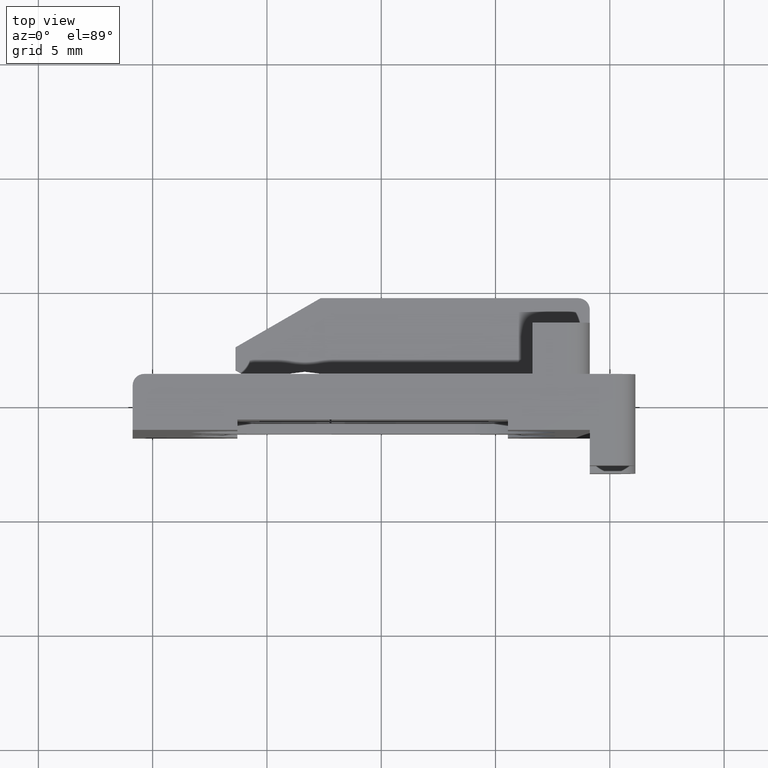
[diagram: clean part render]
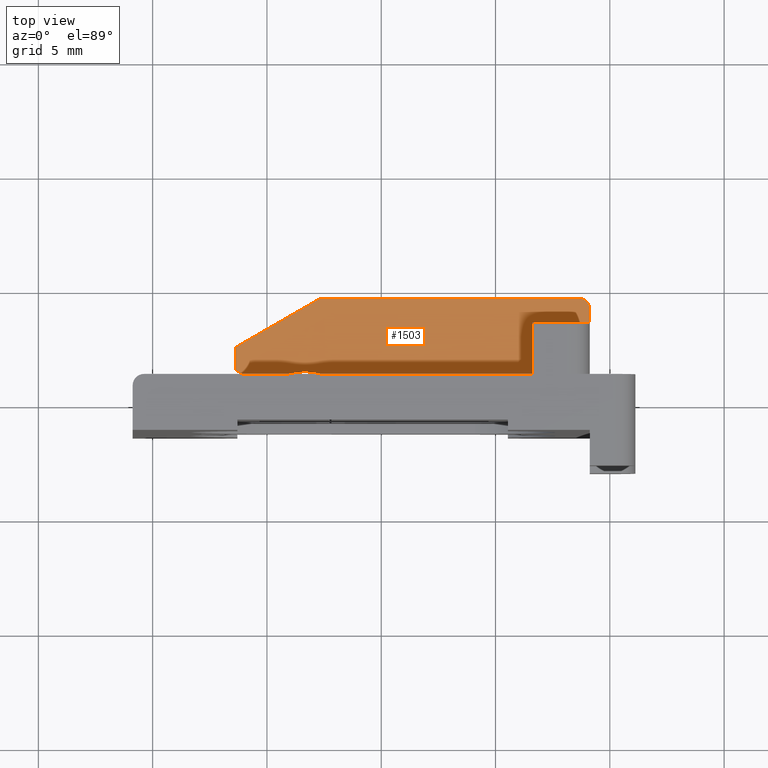
[diagram: same view with one face highlighted and labeled with its STEP entity id]
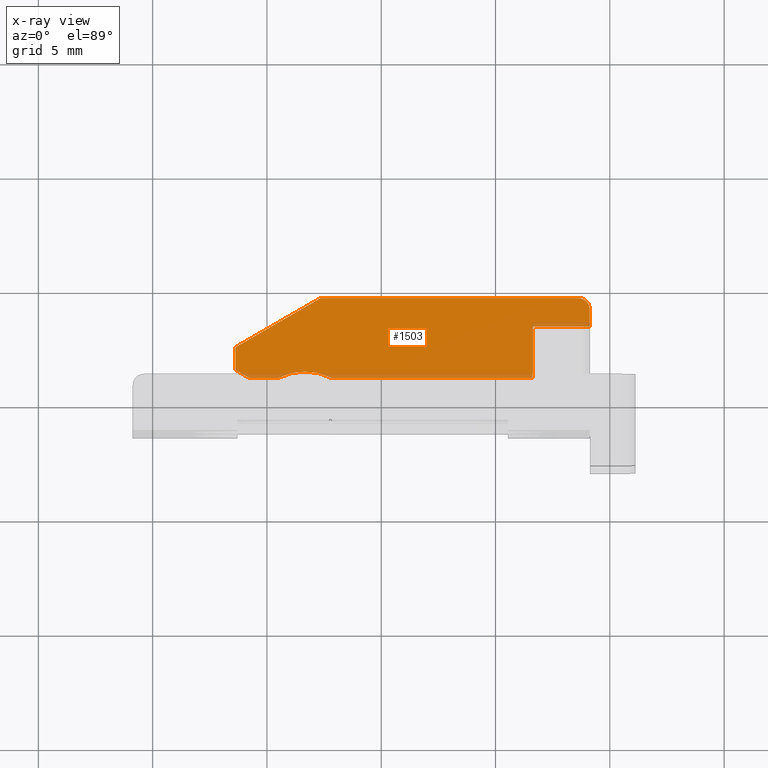
[diagram: x-ray of the same camera — body ghosted, the highlighted face saturated]
A machine part, top view. The second image highlights one B-rep face of the part: STEP entity #1503.
The next image is the same camera in x-ray: the body ghosted, the highlighted face saturated — about 6% of this face is hidden behind the body in this view.
In plain terms, the highlighted planar face has unit normal (-0, 0, 1).
Its self-contained STEP definition (entity closure, byte-faithful):
#9 = VECTOR ( 'NONE', #1916, 1000.000000000000000 ) ;
#12 = VECTOR ( 'NONE', #1964, 1000.000000000000000 ) ;
#81 = VECTOR ( 'NONE', #2057, 1000.000000000000000 ) ;
#114 = AXIS2_PLACEMENT_3D ( 'NONE', #2206, #2177, #2168 ) ;
#142 = AXIS2_PLACEMENT_3D ( 'NONE', #2256, #2277, #2292 ) ;
#144 = VECTOR ( 'NONE', #2285, 1000.000000000000000 ) ;
#150 = CIRCLE ( 'NONE', #142, 0.5000000000000004400 ) ;
#151 = VECTOR ( 'NONE', #2210, 1000.000000000000000 ) ;
#312 = VECTOR ( 'NONE', #1795, 1000.000000000000100 ) ;
#318 = VECTOR ( 'NONE', #1784, 1000.000000000000000 ) ;
#331 = VECTOR ( 'NONE', #1798, 1000.000000000000000 ) ;
#371 = CIRCLE ( 'NONE', #397, 2.500000000000002200 ) ;
#397 = AXIS2_PLACEMENT_3D ( 'NONE', #1831, #1842, #1843 ) ;
#403 = VECTOR ( 'NONE', #1833, 1000.000000000000000 ) ;
#583 = EDGE_LOOP ( 'NONE', ( #1187, #1188, #1166, #1236, #1203, #1160, #1190, #1213, #1186, #1184, #1237 ) ) ;
#669 = VERTEX_POINT ( 'NONE', #865 ) ;
#680 = VERTEX_POINT ( 'NONE', #879 ) ;
#689 = VERTEX_POINT ( 'NONE', #853 ) ;
#701 = VERTEX_POINT ( 'NONE', #878 ) ;
#706 = VERTEX_POINT ( 'NONE', #873 ) ;
#745 = VERTEX_POINT ( 'NONE', #904 ) ;
#751 = VERTEX_POINT ( 'NONE', #911 ) ;
#755 = VERTEX_POINT ( 'NONE', #923 ) ;
#759 = VERTEX_POINT ( 'NONE', #935 ) ;
#763 = VERTEX_POINT ( 'NONE', #902 ) ;
#764 = VERTEX_POINT ( 'NONE', #938 ) ;
#853 = CARTESIAN_POINT ( 'NONE',  ( 463.6252094327940700, 149.5878730676890000, 11.89999999999859900 ) ) ;
#865 = CARTESIAN_POINT ( 'NONE',  ( 448.6252094327942400, 146.4378730676890000, 11.89999999999854700 ) ) ;
#873 = CARTESIAN_POINT ( 'NONE',  ( 464.1252094327940100, 149.0878730676890000, 11.89999999999860100 ) ) ;
#878 = CARTESIAN_POINT ( 'NONE',  ( 449.2314272154433200, 146.0878730676890000, 11.89999999999854900 ) ) ;
#879 = CARTESIAN_POINT ( 'NONE',  ( 450.4891510183761100, 146.0878730676890000, 11.89999999999855400 ) ) ;
#902 = CARTESIAN_POINT ( 'NONE',  ( 464.1252094327940100, 148.3378730676890000, 11.89999999999860100 ) ) ;
#904 = CARTESIAN_POINT ( 'NONE',  ( 461.6252094327939500, 148.3378730676890000, 11.89999999999859200 ) ) ;
#911 = CARTESIAN_POINT ( 'NONE',  ( 452.3491186690670800, 149.5878730676890000, 11.89999999999856000 ) ) ;
#923 = CARTESIAN_POINT ( 'NONE',  ( 448.6252094327942900, 147.4378730676890000, 11.89999999999854700 ) ) ;
#935 = CARTESIAN_POINT ( 'NONE',  ( 461.6252094327939500, 146.0878730676890000, 11.89999999999859200 ) ) ;
#938 = CARTESIAN_POINT ( 'NONE',  ( 452.8252094327940500, 146.0878730676890000, 11.89999999999856200 ) ) ;
#1160 = ORIENTED_EDGE ( 'NONE', *, *, #1520, .T. ) ;
#1166 = ORIENTED_EDGE ( 'NONE', *, *, #1736, .T. ) ;
#1184 = ORIENTED_EDGE ( 'NONE', *, *, #1710, .T. ) ;
#1186 = ORIENTED_EDGE ( 'NONE', *, *, #1708, .T. ) ;
#1187 = ORIENTED_EDGE ( 'NONE', *, *, #1720, .T. ) ;
#1188 = ORIENTED_EDGE ( 'NONE', *, *, #1534, .T. ) ;
#1190 = ORIENTED_EDGE ( 'NONE', *, *, #1484, .T. ) ;
#1203 = ORIENTED_EDGE ( 'NONE', *, *, #1446, .T. ) ;
#1213 = ORIENTED_EDGE ( 'NONE', *, *, #1523, .F. ) ;
#1236 = ORIENTED_EDGE ( 'NONE', *, *, #1450, .F. ) ;
#1237 = ORIENTED_EDGE ( 'NONE', *, *, #1724, .T. ) ;
#1446 = EDGE_CURVE ( 'NONE', #759, #745, #1947, .T. ) ;
#1450 = EDGE_CURVE ( 'NONE', #759, #764, #1948, .T. ) ;
#1484 = EDGE_CURVE ( 'NONE', #763, #706, #2098, .T. ) ;
#1503 = ADVANCED_FACE ( 'NONE', ( #2183 ), #2159, .T. ) ;
#1520 = EDGE_CURVE ( 'NONE', #745, #763, #2240, .T. ) ;
#1523 = EDGE_CURVE ( 'NONE', #689, #706, #150, .T. ) ;
#1534 = EDGE_CURVE ( 'NONE', #701, #680, #2273, .T. ) ;
#1708 = EDGE_CURVE ( 'NONE', #689, #751, #1759, .T. ) ;
#1710 = EDGE_CURVE ( 'NONE', #751, #755, #1779, .T. ) ;
#1720 = EDGE_CURVE ( 'NONE', #669, #701, #1755, .T. ) ;
#1724 = EDGE_CURVE ( 'NONE', #755, #669, #1830, .T. ) ;
#1736 = EDGE_CURVE ( 'NONE', #680, #764, #371, .T. ) ;
#1755 = LINE ( 'NONE', #1775, #331 ) ;
#1759 = LINE ( 'NONE', #1765, #318 ) ;
#1765 = CARTESIAN_POINT ( 'NONE',  ( 451.4830932652830600, 149.5878730676890000, 11.89999999999855800 ) ) ;
#1775 = CARTESIAN_POINT ( 'NONE',  ( 448.6252094327942400, 146.4378730676890000, 11.89999999999854700 ) ) ;
#1779 = LINE ( 'NONE', #1787, #312 ) ;
#1784 = DIRECTION ( 'NONE',  ( -1.000000000000000000, -2.625714205539855700E-033, -3.492165866658340700E-015 ) ) ;
#1787 = CARTESIAN_POINT ( 'NONE',  ( 448.6252094327943500, 147.4378730676890000, 11.89999999999854700 ) ) ;
#1795 = DIRECTION ( 'NONE',  ( -0.8660254037844393700, -0.4999999999999985600, -3.024290686865891900E-015 ) ) ;
#1798 = DIRECTION ( 'NONE',  ( 0.8660254037844392600, -0.4999999999999990000, 3.024318022644160200E-015 ) ) ;
#1813 = CARTESIAN_POINT ( 'NONE',  ( 448.6252094327942400, 146.4378730676890000, 11.89999999999854700 ) ) ;
#1830 = LINE ( 'NONE', #1813, #403 ) ;
#1831 = CARTESIAN_POINT ( 'NONE',  ( 451.6571802255850200, 143.8775093485000100, 11.89999999999855800 ) ) ;
#1833 = DIRECTION ( 'NONE',  ( 2.530253133731424900E-033, -1.000000000000000000, 2.733577826868160200E-020 ) ) ;
#1842 = DIRECTION ( 'NONE',  ( 3.492165866658340700E-015, -2.733577826868160200E-020, -1.000000000000000000 ) ) ;
#1843 = DIRECTION ( 'NONE',  ( 1.000000000000000000, -2.220446049250311200E-014, 3.469446951953611000E-015 ) ) ;
#1904 = CARTESIAN_POINT ( 'NONE',  ( 463.6252094327940700, 146.0878730676890000, 11.89999999999859900 ) ) ;
#1916 = DIRECTION ( 'NONE',  ( -2.530253133731424900E-033, 1.000000000000000000, -2.733577826868160200E-020 ) ) ;
#1917 = CARTESIAN_POINT ( 'NONE',  ( 461.6252094327940100, 149.0878730676890000, 11.89999999999859200 ) ) ;
#1947 = LINE ( 'NONE', #1917, #9 ) ;
#1948 = LINE ( 'NONE', #1904, #12 ) ;
#1964 = DIRECTION ( 'NONE',  ( -1.000000000000000000, -2.625714205539855700E-033, -3.492165866658340700E-015 ) ) ;
#2057 = DIRECTION ( 'NONE',  ( -2.530253133731424900E-033, 1.000000000000000000, -2.733577826868160200E-020 ) ) ;
#2098 = LINE ( 'NONE', #2101, #81 ) ;
#2101 = CARTESIAN_POINT ( 'NONE',  ( 464.1252094327940100, 140.9878730676890100, 11.89999999999860100 ) ) ;
#2159 = PLANE ( 'NONE',  #114 ) ;
#2168 = DIRECTION ( 'NONE',  ( 1.000000000000000000, 0.0000000000000000000, 3.492165866658340700E-015 ) ) ;
#2177 = DIRECTION ( 'NONE',  ( -3.492165866658340700E-015, 2.733577826868160200E-020, 1.000000000000000000 ) ) ;
#2183 = FACE_OUTER_BOUND ( 'NONE', #583, .T. ) ;
#2206 = CARTESIAN_POINT ( 'NONE',  ( 463.6252094327940700, 149.0878730676890000, 11.89999999999859900 ) ) ;
#2210 = DIRECTION ( 'NONE',  ( 1.000000000000000000, 2.625714205539855700E-033, 3.492165866658340700E-015 ) ) ;
#2240 = LINE ( 'NONE', #2248, #151 ) ;
#2248 = CARTESIAN_POINT ( 'NONE',  ( 463.6252094327940700, 148.3378730676890000, 11.89999999999859900 ) ) ;
#2256 = CARTESIAN_POINT ( 'NONE',  ( 463.6252094327940700, 149.0878730676890000, 11.89999999999859900 ) ) ;
#2273 = LINE ( 'NONE', #2287, #144 ) ;
#2277 = DIRECTION ( 'NONE',  ( 3.492165866658340700E-015, -2.733577826868160200E-020, -1.000000000000000000 ) ) ;
#2285 = DIRECTION ( 'NONE',  ( 1.000000000000000000, 2.625714205539855700E-033, 3.492165866658340700E-015 ) ) ;
#2287 = CARTESIAN_POINT ( 'NONE',  ( 450.2252094327940300, 146.0878730676890000, 11.89999999999855300 ) ) ;
#2292 = DIRECTION ( 'NONE',  ( 1.000000000000000000, 0.0000000000000000000, 3.469446951953611000E-015 ) ) ;